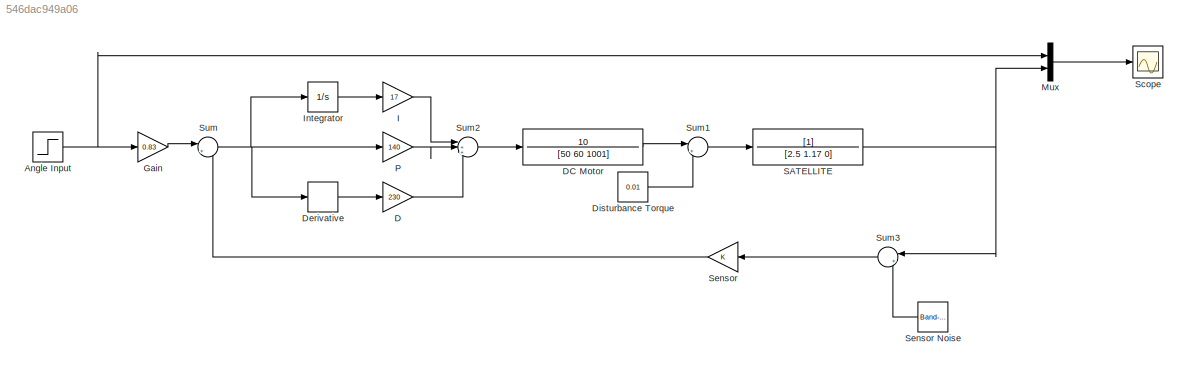
MODEL slx_546dac949a06
KIND model
CONFIG AbsTol = auto
CONFIG EnableMultiTasking = off
CONFIG FixedStep = auto
CONFIG MaxStep = auto
CONFIG MinStep = auto
CONFIG RelTol = 1e-3
CONFIG SampleTimeConstraint = Unconstrained
CONFIG SolverName = VariableStepAuto
CONFIG StartTime = 0.0
CONFIG StopTime = 10.0
BLOCK [TransferFcn]  DC Motor
  Denominator = [50 60 1001]
  Numerator = 10
BLOCK [Step] Angle Input
  After = 0.68
  SampleTime = 0
BLOCK [Gain] D
  Gain = 230
BLOCK [Derivative] Derivative
BLOCK [Constant] Disturbance Torque
  Value = 0.01
BLOCK [Gain] Gain
  Gain = 0.83
BLOCK [Gain] I
  Gain = 17
BLOCK [Integrator] Integrator
  Ports = [1, 1]
BLOCK [Mux] Mux
  DisplayOption = bar
  Inputs = 2
  Ports = [2, 1]
BLOCK [Gain] P
  Gain = 140
BLOCK [TransferFcn] SATELLITE
  Denominator = [2.5 1.17 0]
BLOCK [Scope] Scope
  Floating = off
  NumInputPorts = 1
  Ports = [1]
  ScopeSpecificationString = Simulink.scopes.TimeScopeBlockCfg('CurrentConfiguration', extmgr.ConfigurationSet(extmgr.Configuration('Core','General UI',true),extmgr.Configuration('Core','Source UI',true),extmgr.Configuration('Sources','WiredSimulink',true),extmgr.Configuration('Visuals','Time Domain',true,'SerializedDisplays',{struct('MinYLimReal','-0.09701','MaxYLimReal','0.78516','YLabelReal','','MinYLimMag','0.00000','MaxY...<+1377ch>
BLOCK [Gain] Sensor
BLOCK [Reference] Sensor Noise  REF=simulink/Sources/Band-Limited
White Noise
  NameLocation = top
  Ports = [0, 1]
  SourceBlock = simulink/Sources/Band-Limited\nWhite Noise
  SourceProductBaseCode = SL
  SourceType = Band-Limited White Noise.
BLOCK [Sum] Sum
  Inputs = |+-
  Ports = [2, 1]
BLOCK [Sum] Sum1
  Inputs = |++
  Ports = [2, 1]
BLOCK [Sum] Sum2
  Inputs = |+++
  Ports = [3, 1]
BLOCK [Sum] Sum3
  Inputs = |++
  NameLocation = top
  Ports = [2, 1]
LINE  DC Motor:1 -> Sum1:1
NET Angle Input:1 -> Gain:1, Mux:1
LINE D:1 -> Sum2:3
LINE Derivative:1 -> D:1
LINE Disturbance Torque:1 -> Sum1:2
LINE Gain:1 -> Sum:1
LINE I:1 -> Sum2:1
LINE Integrator:1 -> I:1
LINE Mux:1 -> Scope:1
LINE P:1 -> Sum2:2
NET SATELLITE:1 -> Mux:2, Sum3:1
LINE Sensor Noise:1 -> Sum3:2
LINE Sensor:1 -> Sum:2
LINE Sum1:1 -> SATELLITE:1
LINE Sum2:1 ->  DC Motor:1
LINE Sum3:1 -> Sensor:1
NET Sum:1 -> Derivative:1, Integrator:1, P:1
note: NET lines group one-source signal fan-out (src -> all destinations, sorted); 1:1 wires keep LINE
